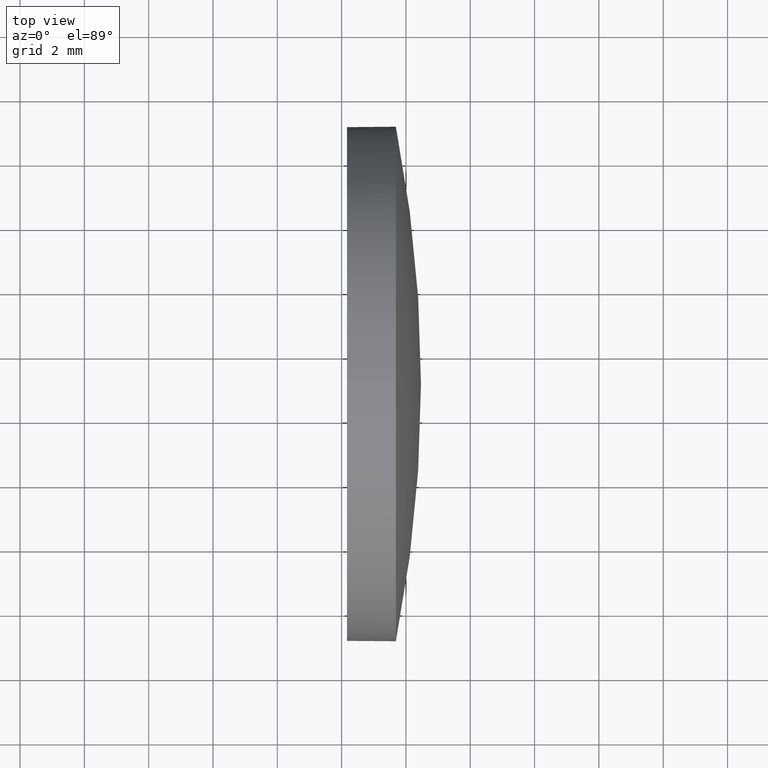
[diagram: clean part render]
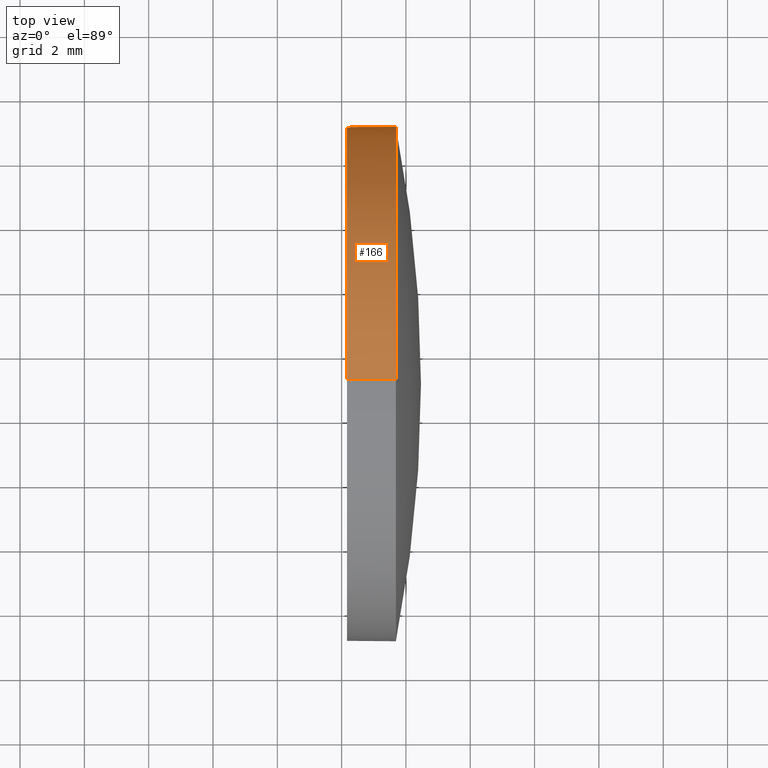
[diagram: same view with one face highlighted and labeled with its STEP entity id]
A machine part, top view. The second image highlights one B-rep face of the part: STEP entity #166.
In plain terms, the highlighted cylindrical surface (partial cylindrical patch) has radius 8 mm, axis along (-1, -0, -0).
Its self-contained STEP definition (entity closure, byte-faithful):
#3 = ORIENTED_EDGE ( 'NONE', *, *, #70, .F. ) ;
#5 = CYLINDRICAL_SURFACE ( 'NONE', #19, 7.999999999999992900 ) ;
#7 = DIRECTION ( 'NONE',  ( -1.000000000000000000, -0.0000000000000000000, -0.0000000000000000000 ) ) ;
#8 = DIRECTION ( 'NONE',  ( -1.000000000000000000, -0.0000000000000000000, -0.0000000000000000000 ) ) ;
#13 = LINE ( 'NONE', #105, #18 ) ;
#15 = FACE_OUTER_BOUND ( 'NONE', #140, .T. ) ;
#18 = VECTOR ( 'NONE', #24, 1000.000000000000000 ) ;
#19 = AXIS2_PLACEMENT_3D ( 'NONE', #37, #38, #135 ) ;
#22 = VERTEX_POINT ( 'NONE', #34 ) ;
#24 = DIRECTION ( 'NONE',  ( -1.000000000000000000, -0.0000000000000000000, -0.0000000000000000000 ) ) ;
#27 = EDGE_CURVE ( 'NONE', #80, #95, #124, .T. ) ;
#34 = CARTESIAN_POINT ( 'NONE',  ( 409.6874928420184600, 111.0797885215637400, -7.999999999999992900 ) ) ;
#37 = CARTESIAN_POINT ( 'NONE',  ( 404.4422242216561500, 111.0797885215637400, 0.0000000000000000000 ) ) ;
#38 = DIRECTION ( 'NONE',  ( -1.000000000000000000, -0.0000000000000000000, -0.0000000000000000000 ) ) ;
#45 = CARTESIAN_POINT ( 'NONE',  ( 409.6874928420184600, 119.0797885215637600, 0.0000000000000000000 ) ) ;
#53 = VERTEX_POINT ( 'NONE', #63 ) ;
#60 = DIRECTION ( 'NONE',  ( 0.0000000000000000000, 0.0000000000000000000, 1.000000000000000000 ) ) ;
#62 = ORIENTED_EDGE ( 'NONE', *, *, #153, .F. ) ;
#63 = CARTESIAN_POINT ( 'NONE',  ( 408.1674928420184800, 111.0797885215637400, -7.999999999999992900 ) ) ;
#70 = EDGE_CURVE ( 'NONE', #173, #53, #107, .T. ) ;
#78 = DIRECTION ( 'NONE',  ( -1.000000000000000000, -0.0000000000000000000, -0.0000000000000000000 ) ) ;
#80 = VERTEX_POINT ( 'NONE', #128 ) ;
#82 = VECTOR ( 'NONE', #8, 1000.000000000000000 ) ;
#88 = AXIS2_PLACEMENT_3D ( 'NONE', #145, #7, #60 ) ;
#91 = CARTESIAN_POINT ( 'NONE',  ( 409.6874928420184600, 111.0797885215637400, 0.0000000000000000000 ) ) ;
#94 = ORIENTED_EDGE ( 'NONE', *, *, #100, .T. ) ;
#95 = VERTEX_POINT ( 'NONE', #45 ) ;
#100 = EDGE_CURVE ( 'NONE', #95, #22, #143, .T. ) ;
#105 = CARTESIAN_POINT ( 'NONE',  ( 404.4422242216561500, 111.0797885215637400, -7.999999999999992900 ) ) ;
#107 = CIRCLE ( 'NONE', #88, 7.999999999999992900 ) ;
#108 = DIRECTION ( 'NONE',  ( -1.000000000000000000, -0.0000000000000000000, -0.0000000000000000000 ) ) ;
#110 = CARTESIAN_POINT ( 'NONE',  ( 409.6874928420184600, 111.0797885215637400, 0.0000000000000000000 ) ) ;
#112 = DIRECTION ( 'NONE',  ( 0.0000000000000000000, 0.0000000000000000000, 1.000000000000000000 ) ) ;
#113 = CARTESIAN_POINT ( 'NONE',  ( 404.4422242216561500, 111.0797885215637400, 7.999999999999992900 ) ) ;
#119 = AXIS2_PLACEMENT_3D ( 'NONE', #91, #78, #112 ) ;
#122 = AXIS2_PLACEMENT_3D ( 'NONE', #110, #108, #178 ) ;
#124 = CIRCLE ( 'NONE', #122, 7.999999999999992900 ) ;
#128 = CARTESIAN_POINT ( 'NONE',  ( 409.6874928420184600, 111.0797885215637400, 7.999999999999992900 ) ) ;
#132 = LINE ( 'NONE', #113, #82 ) ;
#134 = ORIENTED_EDGE ( 'NONE', *, *, #165, .T. ) ;
#135 = DIRECTION ( 'NONE',  ( 0.0000000000000000000, 0.0000000000000000000, 1.000000000000000000 ) ) ;
#140 = EDGE_LOOP ( 'NONE', ( #94, #134, #3, #62, #157 ) ) ;
#143 = CIRCLE ( 'NONE', #119, 7.999999999999992900 ) ;
#145 = CARTESIAN_POINT ( 'NONE',  ( 408.1674928420184800, 111.0797885215637400, 0.0000000000000000000 ) ) ;
#153 = EDGE_CURVE ( 'NONE', #80, #173, #132, .T. ) ;
#157 = ORIENTED_EDGE ( 'NONE', *, *, #27, .T. ) ;
#165 = EDGE_CURVE ( 'NONE', #22, #53, #13, .T. ) ;
#166 = ADVANCED_FACE ( 'NONE', ( #15 ), #5, .T. ) ;
#171 = CARTESIAN_POINT ( 'NONE',  ( 408.1674928420184800, 111.0797885215637400, 7.999999999999992900 ) ) ;
#173 = VERTEX_POINT ( 'NONE', #171 ) ;
#178 = DIRECTION ( 'NONE',  ( 0.0000000000000000000, 0.0000000000000000000, 1.000000000000000000 ) ) ;